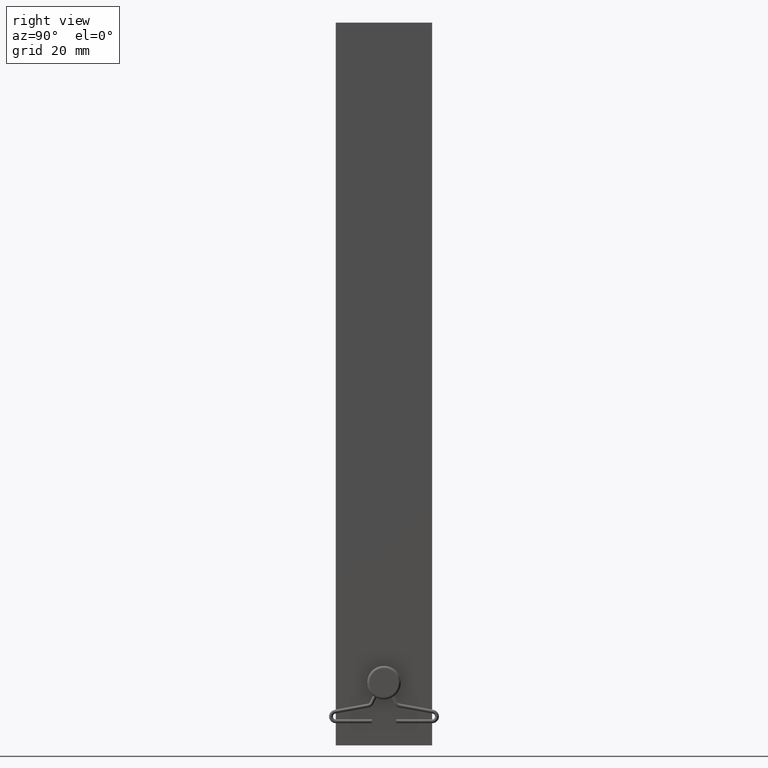
[diagram: clean part render]
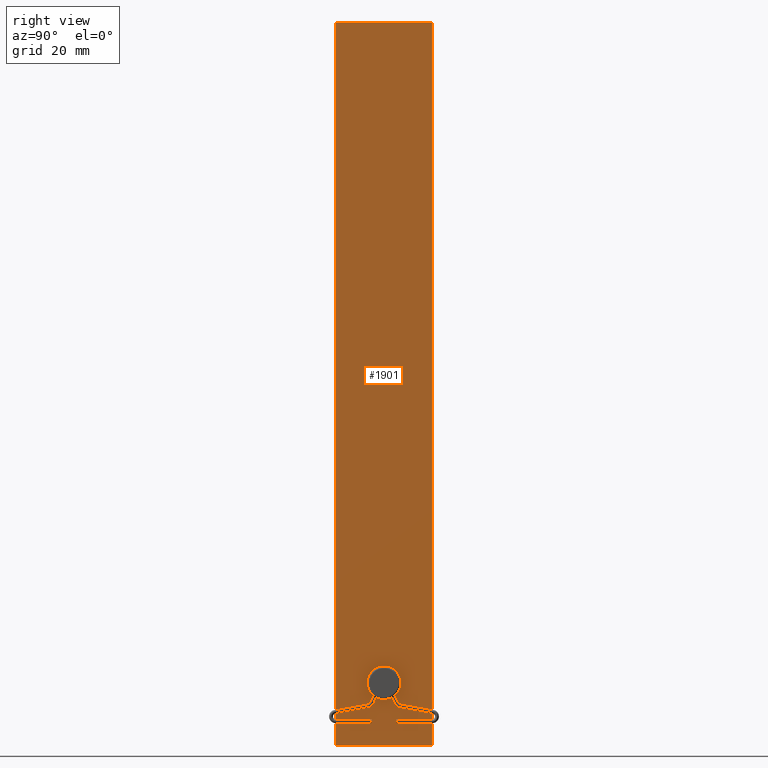
[diagram: same view with one face highlighted and labeled with its STEP entity id]
A machine part, right view. The second image highlights one B-rep face of the part: STEP entity #1901.
In plain terms, the highlighted planar face has unit normal (1, 0, -0).
Its self-contained STEP definition (entity closure, byte-faithful):
#5 = AXIS2_PLACEMENT_3D ( 'NONE', #615, #1364, #147 ) ;
#92 = CARTESIAN_POINT ( 'NONE',  ( 0.4999999999999997780, 6.234162491791648030E-17, 13.00000000000000000 ) ) ;
#107 = VERTEX_POINT ( 'NONE', #1993 ) ;
#147 = DIRECTION ( 'NONE',  ( -1.246832498358330099E-16, 1.000000000000000000, 0.000000000000000000 ) ) ;
#182 = LINE ( 'NONE', #2629, #1430 ) ;
#211 = VECTOR ( 'NONE', #388, 1000.000000000000000 ) ;
#265 = DIRECTION ( 'NONE',  ( 1.000000000000000000, 3.794707603699264533E-16, 0.000000000000000000 ) ) ;
#311 = VERTEX_POINT ( 'NONE', #607 ) ;
#364 = CARTESIAN_POINT ( 'NONE',  ( 0.4999999999999986122, 10.00000000000000000, 150.0000000000000000 ) ) ;
#388 = DIRECTION ( 'NONE',  ( -0.000000000000000000, -0.000000000000000000, -1.000000000000000000 ) ) ;
#412 = EDGE_CURVE ( 'NONE', #311, #1176, #182, .T. ) ;
#533 = CARTESIAN_POINT ( 'NONE',  ( 0.5000000000000011102, -10.00000000000000000, 150.0000000000000000 ) ) ;
#573 = VERTEX_POINT ( 'NONE', #617 ) ;
#595 = VECTOR ( 'NONE', #1548, 1000.000000000000000 ) ;
#607 = CARTESIAN_POINT ( 'NONE',  ( 0.4999999999999986122, 10.00000000000000000, 150.0000000000000000 ) ) ;
#615 = CARTESIAN_POINT ( 'NONE',  ( 0.4999999999999986122, 10.00000000000000000, 150.0000000000000000 ) ) ;
#617 = CARTESIAN_POINT ( 'NONE',  ( 0.5000000000000005551, -1.999999999999999556, 13.00000000000000000 ) ) ;
#863 = FACE_OUTER_BOUND ( 'NONE', #1758, .T. ) ;
#961 = AXIS2_PLACEMENT_3D ( 'NONE', #92, #265, #1978 ) ;
#1055 = EDGE_CURVE ( 'NONE', #573, #107, #2929, .T. ) ;
#1063 = LINE ( 'NONE', #364, #211 ) ;
#1161 = CARTESIAN_POINT ( 'NONE',  ( 0.5000000000000011102, -10.00000000000000000, 150.0000000000000000 ) ) ;
#1176 = VERTEX_POINT ( 'NONE', #533 ) ;
#1178 = VECTOR ( 'NONE', #1645, 1000.000000000000000 ) ;
#1246 = CARTESIAN_POINT ( 'NONE',  ( 0.5000000000000011102, -10.00000000000000000, 0.000000000000000000 ) ) ;
#1302 = ORIENTED_EDGE ( 'NONE', *, *, #412, .T. ) ;
#1364 = DIRECTION ( 'NONE',  ( 1.000000000000000000, 1.246832498358330099E-16, -0.000000000000000000 ) ) ;
#1368 = LINE ( 'NONE', #1161, #1178 ) ;
#1430 = VECTOR ( 'NONE', #2837, 1000.000000000000000 ) ;
#1452 = CARTESIAN_POINT ( 'NONE',  ( 0.4999999999999997780, 6.234162491791648030E-17, 13.00000000000000000 ) ) ;
#1493 = VERTEX_POINT ( 'NONE', #2204 ) ;
#1507 = VERTEX_POINT ( 'NONE', #1246 ) ;
#1548 = DIRECTION ( 'NONE',  ( 1.246832498358330099E-16, -1.000000000000000000, 0.000000000000000000 ) ) ;
#1639 = EDGE_CURVE ( 'NONE', #1493, #1507, #2401, .T. ) ;
#1645 = DIRECTION ( 'NONE',  ( -0.000000000000000000, -0.000000000000000000, -1.000000000000000000 ) ) ;
#1693 = DIRECTION ( 'NONE',  ( 1.000000000000000000, 3.794707603699264533E-16, 0.000000000000000000 ) ) ;
#1694 = EDGE_LOOP ( 'NONE', ( #3091, #2827 ) ) ;
#1758 = EDGE_LOOP ( 'NONE', ( #2610, #2285, #1302, #2253 ) ) ;
#1836 = PLANE ( 'NONE',  #5 ) ;
#1901 = ADVANCED_FACE ( 'NONE', ( #2802, #863 ), #1836, .T. ) ;
#1930 = EDGE_CURVE ( 'NONE', #107, #573, #2384, .T. ) ;
#1978 = DIRECTION ( 'NONE',  ( -3.794707603699266505E-16, 1.000000000000000000, 0.000000000000000000 ) ) ;
#1993 = CARTESIAN_POINT ( 'NONE',  ( 0.4999999999999990563, 1.999999999999999556, 13.00000000000000000 ) ) ;
#2204 = CARTESIAN_POINT ( 'NONE',  ( 0.4999999999999986122, 10.00000000000000000, 0.000000000000000000 ) ) ;
#2253 = ORIENTED_EDGE ( 'NONE', *, *, #2323, .T. ) ;
#2285 = ORIENTED_EDGE ( 'NONE', *, *, #2690, .F. ) ;
#2323 = EDGE_CURVE ( 'NONE', #1176, #1507, #1368, .T. ) ;
#2384 = CIRCLE ( 'NONE', #2990, 1.999999999999999556 ) ;
#2401 = LINE ( 'NONE', #2546, #595 ) ;
#2406 = DIRECTION ( 'NONE',  ( -3.794707603699266505E-16, 1.000000000000000000, 0.000000000000000000 ) ) ;
#2546 = CARTESIAN_POINT ( 'NONE',  ( 0.4999999999999986122, 10.00000000000000000, 0.000000000000000000 ) ) ;
#2610 = ORIENTED_EDGE ( 'NONE', *, *, #1639, .F. ) ;
#2629 = CARTESIAN_POINT ( 'NONE',  ( 0.4999999999999986122, 10.00000000000000000, 150.0000000000000000 ) ) ;
#2690 = EDGE_CURVE ( 'NONE', #311, #1493, #1063, .T. ) ;
#2802 = FACE_BOUND ( 'NONE', #1694, .T. ) ;
#2827 = ORIENTED_EDGE ( 'NONE', *, *, #1930, .F. ) ;
#2837 = DIRECTION ( 'NONE',  ( 1.246832498358330099E-16, -1.000000000000000000, 0.000000000000000000 ) ) ;
#2929 = CIRCLE ( 'NONE', #961, 1.999999999999999556 ) ;
#2990 = AXIS2_PLACEMENT_3D ( 'NONE', #1452, #1693, #2406 ) ;
#3091 = ORIENTED_EDGE ( 'NONE', *, *, #1055, .F. ) ;